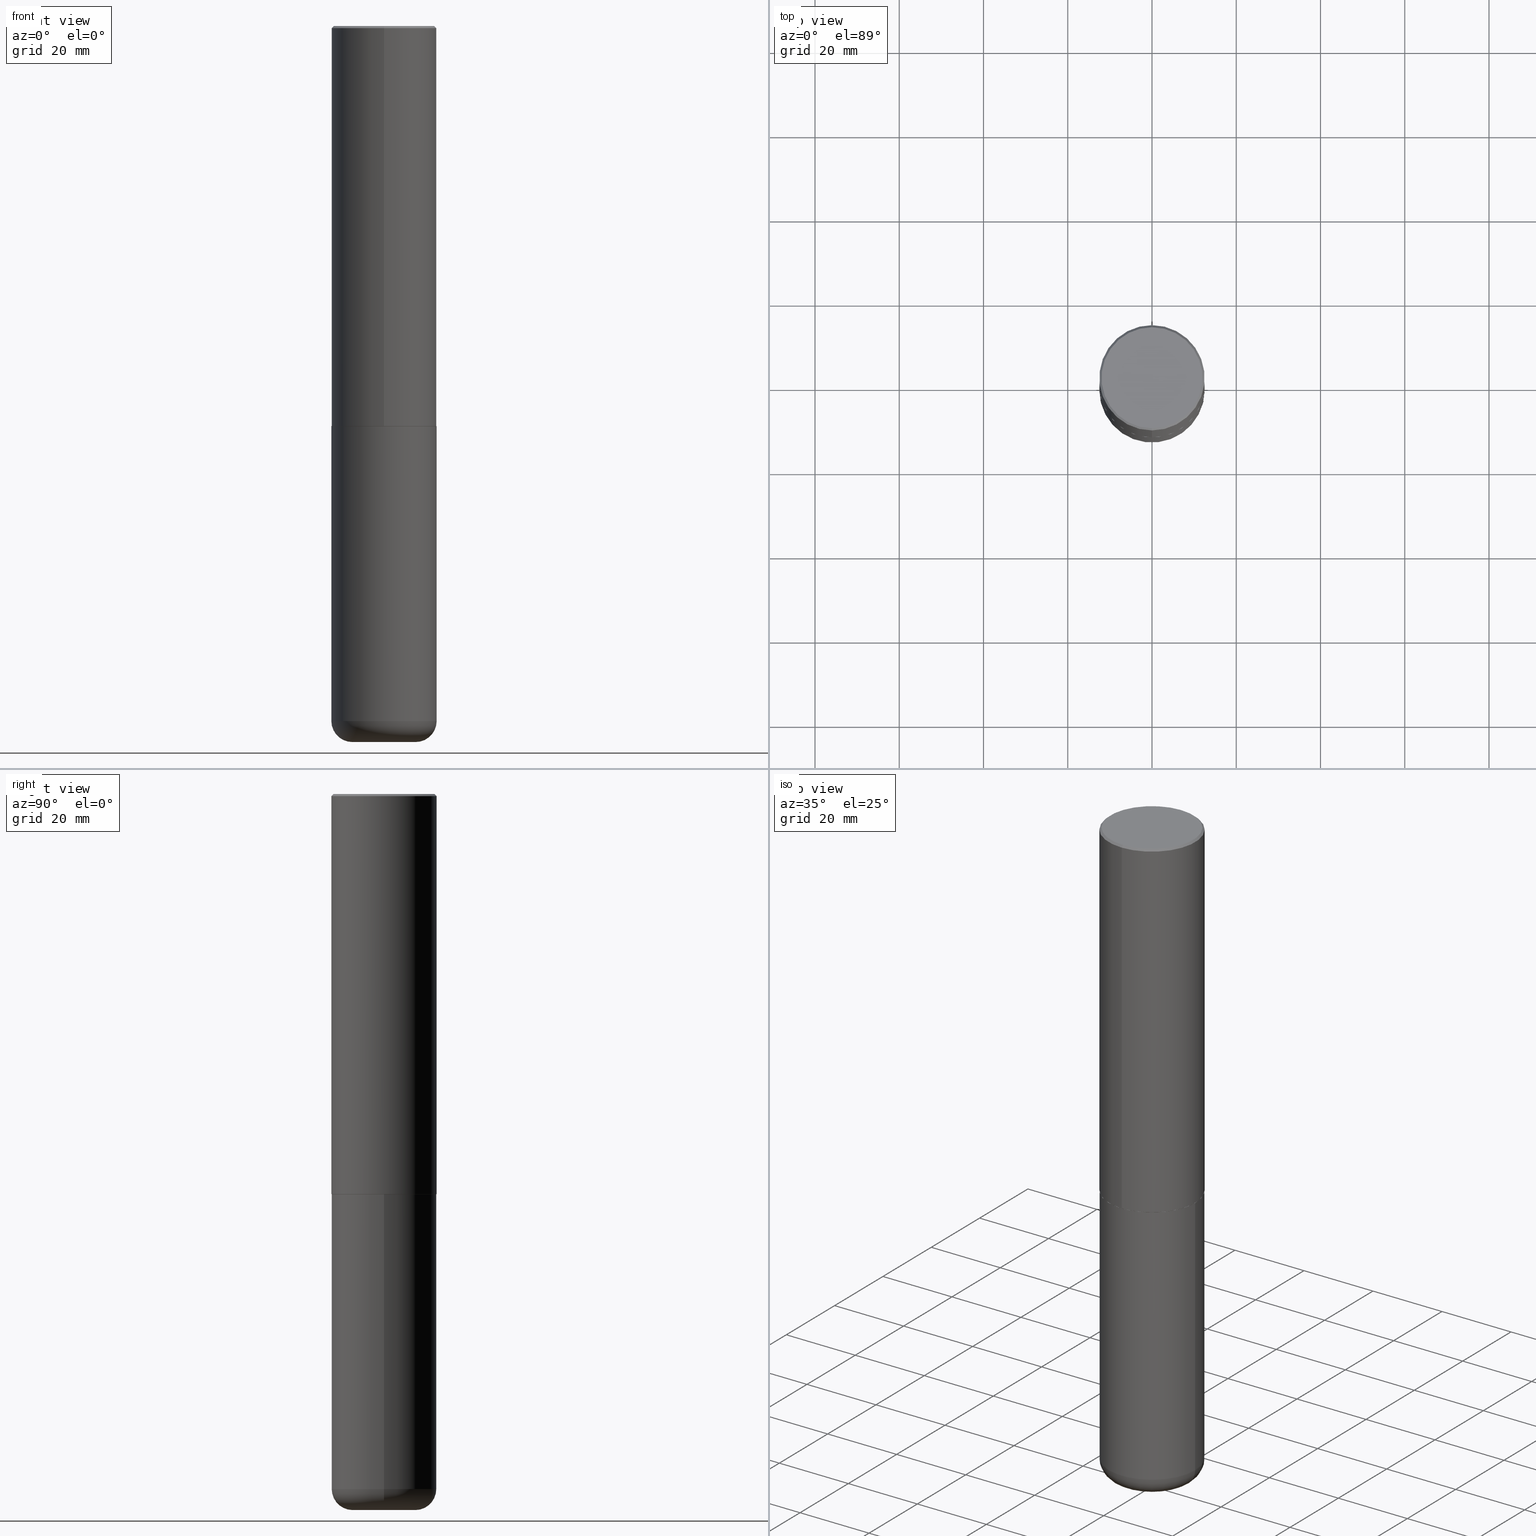
[diagram: canonical four-view strip — front | top / right | iso, engineering-drawing reading convention]
A machine part, canonical four-view strip (front | top / right | iso — engineering-drawing reading convention). The complete STEP part file that produces these views, byte-faithful:
ISO-10303-21;
HEADER;
FILE_DESCRIPTION (( 'STEP AP203' ),
    '1' );
FILE_NAME ('47633.STEP',
    '2024-03-06T19:43:57',
    ( '' ),
    ( '' ),
    'SwSTEP 2.0',
    'SolidWorks 2023',
    '' );
FILE_SCHEMA (( 'CONFIG_CONTROL_DESIGN' ));
ENDSEC;

DATA;
#1 = VECTOR ( 'NONE', #215, 39.37007874015748143 ) ;
#2 = ORIENTED_EDGE ( 'NONE', *, *, #374, .F. ) ;
#3 = DIRECTION ( 'NONE',  ( -6.982962677686265922E-15, -1.000000000000000000, 3.337287582609300506E-15 ) ) ;
#4 = EDGE_CURVE ( 'NONE', #402, #116, #306, .T. ) ;
#5 = DIRECTION ( 'NONE',  ( -2.445468806185136597E-29, 3.491481338843145583E-15, 1.000000000000000000 ) ) ;
#6 = DIRECTION ( 'NONE',  ( 2.445976594451651952E-29, -3.490754157143982552E-15, -1.000000000000000000 ) ) ;
#7 = DATE_TIME_ROLE ( 'creation_date' ) ;
#8 = AXIS2_PLACEMENT_3D ( 'NONE', #284, #12, #404 ) ;
#9 = COORDINATED_UNIVERSAL_TIME_OFFSET ( 5, 0, .BEHIND. ) ;
#10 = APPROVAL_PERSON_ORGANIZATION ( #71, #274, #392 ) ;
#11 = CYLINDRICAL_SURFACE ( 'NONE', #338, 0.4921500000000000874 ) ;
#12 = DIRECTION ( 'NONE',  ( -2.445468806185136597E-29, 3.491481338843145583E-15, 1.000000000000000000 ) ) ;
#13 = EDGE_CURVE ( 'NONE', #402, #251, #363, .T. ) ;
#14 = AXIS2_PLACEMENT_3D ( 'NONE', #195, #6, #241 ) ;
#15 = LINE ( 'NONE', #120, #253 ) ;
#16 = EDGE_LOOP ( 'NONE', ( #21, #373 ) ) ;
#17 =( NAMED_UNIT ( * ) SI_UNIT ( $, .STERADIAN. ) SOLID_ANGLE_UNIT ( ) );
#18 = DESIGN_CONTEXT ( 'detailed design', #263, 'design' ) ;
#19 = ORIENTED_EDGE ( 'NONE', *, *, #69, .F. ) ;
#20 = ORIENTED_EDGE ( 'NONE', *, *, #104, .T. ) ;
#21 = ORIENTED_EDGE ( 'NONE', *, *, #374, .T. ) ;
#22 = AXIS2_PLACEMENT_3D ( 'NONE', #302, #137, #390 ) ;
#23 = ORIENTED_EDGE ( 'NONE', *, *, #146, .F. ) ;
#24 = DIRECTION ( 'NONE',  ( -2.445468806185136597E-29, 3.491481338843145583E-15, 1.000000000000000000 ) ) ;
#25 = APPROVAL_STATUS ( 'not_yet_approved' ) ;
#26 = ADVANCED_FACE ( 'NONE', ( #55 ), #128, .T. ) ;
#27 = ORIENTED_EDGE ( 'NONE', *, *, #393, .F. ) ;
#28 = AXIS2_PLACEMENT_3D ( 'NONE', #51, #34, #194 ) ;
#29 = CC_DESIGN_APPROVAL ( #43, ( #129 ) ) ;
#30 = ORIENTED_EDGE ( 'NONE', *, *, #60, .F. ) ;
#31 = PERSON_AND_ORGANIZATION ( #271, #208 ) ;
#32 = DIRECTION ( 'NONE',  ( -1.000000000000000000, 6.982962677686265922E-15, -4.876176775795935793E-29 ) ) ;
#33 = COORDINATED_UNIVERSAL_TIME_OFFSET ( 5, 0, .BEHIND. ) ;
#34 = DIRECTION ( 'NONE',  ( -2.445976594451651952E-29, 3.490754157143982552E-15, 1.000000000000000000 ) ) ;
#35 = DIRECTION ( 'NONE',  ( -2.445976594451651952E-29, 3.490754157143982552E-15, 1.000000000000000000 ) ) ;
#36 = PLANE ( 'NONE',  #67 ) ;
#37 = CARTESIAN_POINT ( 'NONE',  ( -3.436665081823207030E-15, -0.4921500000000134101, -3.739099999999998758 ) ) ;
#38 = EDGE_CURVE ( 'NONE', #251, #149, #287, .T. ) ;
#39 = CARTESIAN_POINT ( 'NONE',  ( -5.420756467185317189E-45, 7.736185299407739239E-31, 2.216193106459615290E-16 ) ) ;
#40 = FACE_OUTER_BOUND ( 'NONE', #252, .T. ) ;
#41 = CARTESIAN_POINT ( 'NONE',  ( 1.588576536497864771E-28, -2.268066277712507367E-14, -6.495999999999999552 ) ) ;
#42 = EDGE_CURVE ( 'NONE', #251, #85, #264, .T. ) ;
#43 = APPROVAL ( #138, 'UNSPECIFIED' ) ;
#44 = LOCAL_TIME ( 14, 43, 57.00000000000000000, #33 ) ;
#45 = PERSON_AND_ORGANIZATION_ROLE ( 'design_owner' ) ;
#46 = CIRCLE ( 'NONE', #141, 0.4721499999999996255 ) ;
#47 = CIRCLE ( 'NONE', #364, 0.4911499999999999755 ) ;
#48 = VERTEX_POINT ( 'NONE', #37 ) ;
#49 = VERTEX_POINT ( 'NONE', #383 ) ;
#50 = CARTESIAN_POINT ( 'NONE',  ( 0.4921499999999999764, -1.649515443723054663E-14, -3.740100000000000424 ) ) ;
#51 = CARTESIAN_POINT ( 'NONE',  ( 0.000000000000000000, 0.000000000000000000, 0.000000000000000000 ) ) ;
#52 = ORIENTED_EDGE ( 'NONE', *, *, #69, .T. ) ;
#53 = CIRCLE ( 'NONE', #296, 0.4921499999999999764 ) ;
#54 = DIRECTION ( 'NONE',  ( 5.024295867790978808E-15, 0.7071067811869604647, 0.7071067811861345698 ) ) ;
#55 = FACE_OUTER_BOUND ( 'NONE', #227, .T. ) ;
#56 = CARTESIAN_POINT ( 'NONE',  ( 0.4921499999999997543, -2.611732785894836787E-14, -6.495999999999999552 ) ) ;
#57 = AXIS2_PLACEMENT_3D ( 'NONE', #246, #400, #109 ) ;
#58 = CARTESIAN_POINT ( 'NONE',  ( 4.891953188903329688E-31, -6.981508314288001687E-17, -0.02000000000000010797 ) ) ;
#59 =( GEOMETRIC_REPRESENTATION_CONTEXT ( 3 ) GLOBAL_UNCERTAINTY_ASSIGNED_CONTEXT ( ( #101 ) ) GLOBAL_UNIT_ASSIGNED_CONTEXT ( ( #366, #80, #17 ) ) REPRESENTATION_CONTEXT ( 'NONE', 'WORKASPACE' ) );
#60 = EDGE_CURVE ( 'NONE', #201, #332, #170, .T. ) ;
#61 = ORIENTED_EDGE ( 'NONE', *, *, #42, .F. ) ;
#62 = FACE_OUTER_BOUND ( 'NONE', #144, .T. ) ;
#63 = DATE_AND_TIME ( #231, #140 ) ;
#64 = DIRECTION ( 'NONE',  ( -1.000000000000000000, 6.982962677686265922E-15, -4.876176775795935793E-29 ) ) ;
#65 = CARTESIAN_POINT ( 'NONE',  ( 9.148197060908621523E-29, -1.305576962313420868E-14, -3.740099999999999980 ) ) ;
#66 = CLOSED_SHELL ( 'NONE', ( #316, #367, #317, #378, #114, #337 ) ) ;
#67 = AXIS2_PLACEMENT_3D ( 'NONE', #345, #299, #193 ) ;
#68 = COORDINATED_UNIVERSAL_TIME_OFFSET ( 5, 0, .BEHIND. ) ;
#69 = EDGE_CURVE ( 'NONE', #85, #49, #331, .T. ) ;
#70 = DIRECTION ( 'NONE',  ( -2.445976594451651952E-29, 3.490754157143982552E-15, 1.000000000000000000 ) ) ;
#71 = PERSON_AND_ORGANIZATION ( #271, #208 ) ;
#72 = EDGE_CURVE ( 'NONE', #149, #49, #15, .T. ) ;
#73 = PERSON_AND_ORGANIZATION ( #271, #208 ) ;
#74 = APPROVAL_STATUS ( 'not_yet_approved' ) ;
#75 = CARTESIAN_POINT ( 'NONE',  ( 0.000000000000000000, 0.000000000000000000, 0.000000000000000000 ) ) ;
#76 = DIRECTION ( 'NONE',  ( -4.851104656540955597E-15, -0.7071067811865487940, -0.7071067811865461294 ) ) ;
#77 = CARTESIAN_POINT ( 'NONE',  ( 3.496936074043333291E-15, 0.4921500000000000874, -1.717974658438411319E-15 ) ) ;
#78 = CONICAL_SURFACE ( 'NONE', #142, 0.4911499999999999755, 0.7853981633980288146 ) ;
#79 = ORIENTED_EDGE ( 'NONE', *, *, #393, .T. ) ;
#80 =( NAMED_UNIT ( * ) PLANE_ANGLE_UNIT ( ) SI_UNIT ( $, .RADIAN. ) );
#81 = ORIENTED_EDGE ( 'NONE', *, *, #104, .F. ) ;
#82 = AXIS2_PLACEMENT_3D ( 'NONE', #91, #276, #298 ) ;
#83 = AXIS2_PLACEMENT_3D ( 'NONE', #228, #96, #32 ) ;
#84 = DIRECTION ( 'NONE',  ( -2.445468806185136877E-29, 3.491481338843145188E-15, 1.000000000000000000 ) ) ;
#85 = VERTEX_POINT ( 'NONE', #50 ) ;
#86 = FACE_OUTER_BOUND ( 'NONE', #291, .T. ) ;
#87 = ORIENTED_EDGE ( 'NONE', *, *, #353, .T. ) ;
#88 = CC_DESIGN_PERSON_AND_ORGANIZATION_ASSIGNMENT ( #73, #304, ( #118 ) ) ;
#89 = VECTOR ( 'NONE', #90, 39.37007874015748143 ) ;
#90 = DIRECTION ( 'NONE',  ( -2.445468806185136877E-29, 3.491481338843145188E-15, 1.000000000000000000 ) ) ;
#91 = CARTESIAN_POINT ( 'NONE',  ( 4.891953188903329688E-31, -6.981508314288001687E-17, -0.02000000000000010797 ) ) ;
#92 = AXIS2_PLACEMENT_3D ( 'NONE', #39, #35, #174 ) ;
#93 = PERSON_AND_ORGANIZATION ( #271, #208 ) ;
#94 = ORIENTED_EDGE ( 'NONE', *, *, #164, .T. ) ;
#95 = CARTESIAN_POINT ( 'NONE',  ( -0.2952499999999999569, -2.058278534979337620E-14, -6.495999999999999552 ) ) ;
#96 = DIRECTION ( 'NONE',  ( 2.438088387897960049E-29, -3.491481338843145188E-15, -1.000000000000000000 ) ) ;
#97 = DATE_AND_TIME ( #388, #161 ) ;
#98 = LINE ( 'NONE', #77, #1 ) ;
#99 = EDGE_CURVE ( 'NONE', #217, #201, #46, .T. ) ;
#100 = CARTESIAN_POINT ( 'NONE',  ( 0.2952500000000000124, -2.542985518333015688E-14, -6.692899999999998961 ) ) ;
#101 = UNCERTAINTY_MEASURE_WITH_UNIT (LENGTH_MEASURE( 1.000000000000000082E-05 ), #366, 'distance_accuracy_value', 'NONE');
#102 = AXIS2_PLACEMENT_3D ( 'NONE', #130, #329, #64 ) ;
#103 = CARTESIAN_POINT ( 'NONE',  ( -0.4921499999999997543, -1.918372670308173998E-14, -6.495999999999999552 ) ) ;
#104 = EDGE_CURVE ( 'NONE', #321, #332, #313, .T. ) ;
#105 = DIRECTION ( 'NONE',  ( -6.982962677686265922E-15, -1.000000000000000000, 3.330506545156063496E-15 ) ) ;
#106 = CARTESIAN_POINT ( 'NONE',  ( -0.2952500000000000124, -2.022699236424666989E-14, -6.692899999999998961 ) ) ;
#107 = CC_DESIGN_PERSON_AND_ORGANIZATION_ASSIGNMENT ( #31, #416, ( #200 ) ) ;
#108 = AXIS2_PLACEMENT_3D ( 'NONE', #75, #245, #282 ) ;
#109 = DIRECTION ( 'NONE',  ( 1.000000000000000000, -6.982962677686264344E-15, 4.883557194083111780E-29 ) ) ;
#110 = APPLICATION_PROTOCOL_DEFINITION ( 'international standard', 'config_control_design', 1994, #263 ) ;
#111 = CARTESIAN_POINT ( 'NONE',  ( 4.891953188903329688E-31, -6.981508314288001687E-17, -0.02000000000000010797 ) ) ;
#112 = ORIENTED_EDGE ( 'NONE', *, *, #42, .T. ) ;
#113 = PERSON_AND_ORGANIZATION ( #271, #208 ) ;
#114 = ADVANCED_FACE ( 'NONE', ( #283 ), #412, .T. ) ;
#115 = ORIENTED_EDGE ( 'NONE', *, *, #183, .T. ) ;
#116 = VERTEX_POINT ( 'NONE', #106 ) ;
#117 = CIRCLE ( 'NONE', #176, 0.4921499999999999764 ) ;
#118 = SECURITY_CLASSIFICATION ( '', '', #327 ) ;
#119 = CC_DESIGN_APPROVAL ( #340, ( #118 ) ) ;
#120 = CARTESIAN_POINT ( 'NONE',  ( -0.4921499999999999764, 3.496936074043332897E-15, -2.420853904668951509E-29 ) ) ;
#121 = ORIENTED_EDGE ( 'NONE', *, *, #13, .T. ) ;
#122 = DATE_TIME_ROLE ( 'classification_date' ) ;
#123 = EDGE_LOOP ( 'NONE', ( #259, #372, #121, #27 ) ) ;
#124 = ORIENTED_EDGE ( 'NONE', *, *, #300, .F. ) ;
#125 = VERTEX_POINT ( 'NONE', #249 ) ;
#126 = TOROIDAL_SURFACE ( 'NONE', #214, 0.2952499999999999569, 0.1968999999999996031 ) ;
#127 = CARTESIAN_POINT ( 'NONE',  ( 0.000000000000000000, 0.000000000000000000, 0.000000000000000000 ) ) ;
#128 = CYLINDRICAL_SURFACE ( 'NONE', #28, 0.4921500000000000874 ) ;
#129 = PRODUCT_DEFINITION ( 'UNKNOWN', '', #200, #18 ) ;
#130 = CARTESIAN_POINT ( 'NONE',  ( 3.366467196184149442E-28, 1.402716959511487627E-15, -6.692899999999999849 ) ) ;
#131 = LINE ( 'NONE', #266, #240 ) ;
#132 = EDGE_LOOP ( 'NONE', ( #295, #344, #342, #268 ) ) ;
#133 = AXIS2_PLACEMENT_3D ( 'NONE', #347, #376, #202 ) ;
#134 = DIRECTION ( 'NONE',  ( 6.982962677686265922E-15, 1.000000000000000000, -3.490754157143982552E-15 ) ) ;
#135 = COORDINATED_UNIVERSAL_TIME_OFFSET ( 5, 0, .BEHIND. ) ;
#136 = VERTEX_POINT ( 'NONE', #187 ) ;
#137 = DIRECTION ( 'NONE',  ( -2.445976594451651952E-29, 3.490754157143982552E-15, 1.000000000000000000 ) ) ;
#138 = APPROVAL_STATUS ( 'not_yet_approved' ) ;
#139 = FACE_OUTER_BOUND ( 'NONE', #132, .T. ) ;
#140 = LOCAL_TIME ( 14, 43, 57.00000000000000000, #334 ) ;
#141 = AXIS2_PLACEMENT_3D ( 'NONE', #398, #311, #143 ) ;
#142 = AXIS2_PLACEMENT_3D ( 'NONE', #325, #70, #211 ) ;
#143 = DIRECTION ( 'NONE',  ( -6.982962677686265922E-15, -1.000000000000000000, 3.490754157143982946E-15 ) ) ;
#144 = EDGE_LOOP ( 'NONE', ( #153, #312 ) ) ;
#145 = ORIENTED_EDGE ( 'NONE', *, *, #353, .F. ) ;
#146 = EDGE_CURVE ( 'NONE', #49, #85, #117, .T. ) ;
#147 = EDGE_LOOP ( 'NONE', ( #52, #297 ) ) ;
#148 = CARTESIAN_POINT ( 'NONE',  ( 3.489830646685823002E-15, 0.4911499999999869304, -3.740100000000001312 ) ) ;
#149 = VERTEX_POINT ( 'NONE', #103 ) ;
#150 = ORIENTED_EDGE ( 'NONE', *, *, #280, .T. ) ;
#151 = CYLINDRICAL_SURFACE ( 'NONE', #385, 0.4921499999999999764 ) ;
#152 = CIRCLE ( 'NONE', #82, 0.4921499999999999209 ) ;
#153 = ORIENTED_EDGE ( 'NONE', *, *, #4, .F. ) ;
#154 = SHAPE_DEFINITION_REPRESENTATION ( #223, #250 ) ;
#155 = DIRECTION ( 'NONE',  ( 1.000000000000000000, -6.982962677686265922E-15, 0.000000000000000000 ) ) ;
#156 = APPROVAL_ROLE ( '' ) ;
#157 = DIRECTION ( 'NONE',  ( 1.000000000000000000, -6.982962677686273021E-15, 0.000000000000000000 ) ) ;
#158 = ORIENTED_EDGE ( 'NONE', *, *, #197, .T. ) ;
#159 = CARTESIAN_POINT ( 'NONE',  ( -3.307789109625541747E-15, -0.4721499999999996255, 1.869778885941491673E-15 ) ) ;
#160 = CARTESIAN_POINT ( 'NONE',  ( 1.588576536497864771E-28, -2.268066277712507367E-14, -6.495999999999999552 ) ) ;
#161 = LOCAL_TIME ( 14, 43, 57.00000000000000000, #135 ) ;
#162 = EDGE_CURVE ( 'NONE', #217, #321, #180, .T. ) ;
#163 = ORIENTED_EDGE ( 'NONE', *, *, #162, .T. ) ;
#164 = EDGE_CURVE ( 'NONE', #125, #48, #254, .T. ) ;
#165 = PLANE ( 'NONE',  #102 ) ;
#166 = CARTESIAN_POINT ( 'NONE',  ( 3.366835455046432084E-15, 0.4721499999999996255, -1.426540264649568516E-15 ) ) ;
#167 = DIRECTION ( 'NONE',  ( 1.000000000000000000, -6.982962677686265922E-15, 0.000000000000000000 ) ) ;
#168 = CARTESIAN_POINT ( 'NONE',  ( 3.297005828269567997E-15, 0.4721499999999996255, -1.537349919972549256E-15 ) ) ;
#169 = FACE_OUTER_BOUND ( 'NONE', #289, .T. ) ;
#170 = LINE ( 'NONE', #415, #198 ) ;
#171 = DIRECTION ( 'NONE',  ( 1.000000000000000000, -6.982962677686265922E-15, 0.000000000000000000 ) ) ;
#172 = DIRECTION ( 'NONE',  ( -6.982962677686265922E-15, -1.000000000000000000, 3.337287582609300506E-15 ) ) ;
#173 = VECTOR ( 'NONE', #54, 39.37007874015748143 ) ;
#174 = DIRECTION ( 'NONE',  ( -6.982962677686265922E-15, -1.000000000000000000, 3.490754157143982946E-15 ) ) ;
#175 = CYLINDRICAL_SURFACE ( 'NONE', #370, 0.4921499999999999764 ) ;
#176 = AXIS2_PLACEMENT_3D ( 'NONE', #315, #356, #167 ) ;
#177 = CIRCLE ( 'NONE', #22, 0.4921500000000003650 ) ;
#178 = CC_DESIGN_SECURITY_CLASSIFICATION ( #118, ( #200 ) ) ;
#179 = DATE_AND_TIME ( #244, #186 ) ;
#180 = LINE ( 'NONE', #360, #219 ) ;
#181 = VERTEX_POINT ( 'NONE', #210 ) ;
#182 = DIRECTION ( 'NONE',  ( -2.445976594451651952E-29, 3.490754157143982552E-15, 1.000000000000000000 ) ) ;
#183 = EDGE_CURVE ( 'NONE', #125, #332, #98, .T. ) ;
#184 = AXIS2_PLACEMENT_3D ( 'NONE', #111, #310, #365 ) ;
#185 = AXIS2_PLACEMENT_3D ( 'NONE', #168, #335, #134 ) ;
#186 = LOCAL_TIME ( 14, 43, 57.00000000000000000, #9 ) ;
#187 = CARTESIAN_POINT ( 'NONE',  ( 3.493383360364624690E-15, 0.4911499999999869304, -3.740100000000001312 ) ) ;
#188 =( LENGTH_UNIT ( ) NAMED_UNIT ( * ) SI_UNIT ( $, .METRE. ) );
#189 = ORIENTED_EDGE ( 'NONE', *, *, #60, .T. ) ;
#190 = ORIENTED_EDGE ( 'NONE', *, *, #38, .F. ) ;
#191 = CARTESIAN_POINT ( 'NONE',  ( 0.2952499999999999569, -2.474238250771194590E-14, -6.495999999999999552 ) ) ;
#192 = CC_DESIGN_PERSON_AND_ORGANIZATION_ASSIGNMENT ( #93, #324, ( #200 ) ) ;
#193 = DIRECTION ( 'NONE',  ( -6.982962677686265922E-15, -1.000000000000000000, 3.490754157143982552E-15 ) ) ;
#194 = DIRECTION ( 'NONE',  ( -6.982962677686265922E-15, -1.000000000000000000, 3.490754157143982552E-15 ) ) ;
#195 = CARTESIAN_POINT ( 'NONE',  ( 4.891953188903329688E-31, -6.981508314288001687E-17, -0.02000000000000010797 ) ) ;
#196 = ADVANCED_FACE ( 'NONE', ( #339 ), #11, .T. ) ;
#197 = EDGE_CURVE ( 'NONE', #136, #181, #355, .T. ) ;
#198 = VECTOR ( 'NONE', #242, 39.37007874015748143 ) ;
#199 = DIRECTION ( 'NONE',  ( 1.000000000000000000, -6.982962677686270655E-15, 0.000000000000000000 ) ) ;
#200 = PRODUCT_DEFINITION_FORMATION_WITH_SPECIFIED_SOURCE ( 'ANY', '', #394, .NOT_KNOWN. ) ;
#201 = VERTEX_POINT ( 'NONE', #166 ) ;
#202 = DIRECTION ( 'NONE',  ( 1.000000000000000000, -6.982962677686273021E-15, 0.000000000000000000 ) ) ;
#203 = DIRECTION ( 'NONE',  ( 1.000000000000000000, -6.982962677686264344E-15, 4.883557194083111780E-29 ) ) ;
#204 = CARTESIAN_POINT ( 'NONE',  ( 1.588576536497864771E-28, -2.268066277712507367E-14, -6.495999999999999552 ) ) ;
#205 = DIRECTION ( 'NONE',  ( -2.445976594451651952E-29, 3.490754157143982552E-15, 1.000000000000000000 ) ) ;
#206 = AXIS2_PLACEMENT_3D ( 'NONE', #160, #24, #155 ) ;
#207 = DIRECTION ( 'NONE',  ( -2.445976594451651952E-29, 3.490754157143982552E-15, 1.000000000000000000 ) ) ;
#208 = ORGANIZATION ( 'UNSPECIFIED', 'UNSPECIFIED', '' ) ;
#209 = PERSON_AND_ORGANIZATION_ROLE ( 'creator' ) ;
#210 = CARTESIAN_POINT ( 'NONE',  ( -3.429682119145517860E-15, -0.4911500000000130206, -3.740099999999998204 ) ) ;
#211 = DIRECTION ( 'NONE',  ( -6.982962677686265922E-15, -1.000000000000000000, 3.337287582609300506E-15 ) ) ;
#212 = ADVANCED_FACE ( 'NONE', ( #169 ), #36, .F. ) ;
#213 = CARTESIAN_POINT ( 'NONE',  ( 9.145751084314172604E-29, -1.305227886897706845E-14, -3.739100000000000534 ) ) ;
#214 = AXIS2_PLACEMENT_3D ( 'NONE', #204, #330, #203 ) ;
#215 = DIRECTION ( 'NONE',  ( -2.445976594451651672E-29, 3.490754157143982552E-15, 1.000000000000000000 ) ) ;
#216 = CC_DESIGN_PERSON_AND_ORGANIZATION_ASSIGNMENT ( #236, #209, ( #129 ) ) ;
#217 = VERTEX_POINT ( 'NONE', #159 ) ;
#218 = ORIENTED_EDGE ( 'NONE', *, *, #399, .T. ) ;
#219 = VECTOR ( 'NONE', #76, 39.37007874015748854 ) ;
#220 = EDGE_LOOP ( 'NONE', ( #124, #158, #150, #221 ) ) ;
#221 = ORIENTED_EDGE ( 'NONE', *, *, #164, .F. ) ;
#222 = EDGE_CURVE ( 'NONE', #116, #402, #406, .T. ) ;
#223 = PRODUCT_DEFINITION_SHAPE ( 'NONE', 'NONE',  #129 ) ;
#224 = AXIS2_PLACEMENT_3D ( 'NONE', #213, #277, #105 ) ;
#225 = DIRECTION ( 'NONE',  ( -6.982962677686266711E-15, -1.000000000000000000, 3.491481338843145583E-15 ) ) ;
#226 = EDGE_CURVE ( 'NONE', #48, #321, #131, .T. ) ;
#227 = EDGE_LOOP ( 'NONE', ( #255, #94, #408, #145 ) ) ;
#228 = CARTESIAN_POINT ( 'NONE',  ( 9.146297882013029477E-29, -1.305848935540725085E-14, -3.740100000000000424 ) ) ;
#229 = DIRECTION ( 'NONE',  ( -2.445468806185136597E-29, 3.491481338843145583E-15, 1.000000000000000000 ) ) ;
#230 = FACE_OUTER_BOUND ( 'NONE', #405, .T. ) ;
#231 = CALENDAR_DATE ( 2024, 6, 3 ) ;
#232 = PLANE ( 'NONE',  #83 ) ;
#233 = CC_DESIGN_PERSON_AND_ORGANIZATION_ASSIGNMENT ( #305, #45, ( #394 ) ) ;
#234 = EDGE_LOOP ( 'NONE', ( #318, #2, #189, #87 ) ) ;
#235 = DIRECTION ( 'NONE',  ( -1.000000000000000000, 7.105427357601008170E-15, 0.000000000000000000 ) ) ;
#236 = PERSON_AND_ORGANIZATION ( #271, #208 ) ;
#237 = DIRECTION ( 'NONE',  ( -6.982962677686265922E-15, -1.000000000000000000, 3.490754157143982552E-15 ) ) ;
#238 = APPLICATION_CONTEXT ( 'configuration controlled 3d designs of mechanical parts and assemblies' ) ;
#239 = CARTESIAN_POINT ( 'NONE',  ( 0.000000000000000000, 0.000000000000000000, 0.000000000000000000 ) ) ;
#240 = VECTOR ( 'NONE', #346, 39.37007874015748143 ) ;
#241 = DIRECTION ( 'NONE',  ( 6.982962677686265922E-15, 1.000000000000000000, -3.486624039460257331E-15 ) ) ;
#242 = DIRECTION ( 'NONE',  ( 4.937700262164540154E-15, 0.7071067811865440200, -0.7071067811865511255 ) ) ;
#243 = PRODUCT_RELATED_PRODUCT_CATEGORY ( 'detail', '', ( #394 ) ) ;
#244 = CALENDAR_DATE ( 2024, 6, 3 ) ;
#245 = DIRECTION ( 'NONE',  ( 0.000000000000000000, 0.000000000000000000, 1.000000000000000000 ) ) ;
#246 = CARTESIAN_POINT ( 'NONE',  ( 1.588576536497864771E-28, -2.268066277712507367E-14, -6.495999999999999552 ) ) ;
#247 = AXIS2_PLACEMENT_3D ( 'NONE', #191, #225, #199 ) ;
#248 = VECTOR ( 'NONE', #273, 39.37007874015748143 ) ;
#249 = CARTESIAN_POINT ( 'NONE',  ( 3.496936074043380229E-15, 0.4921499999999873198, -3.739100000000002311 ) ) ;
#250 = ADVANCED_BREP_SHAPE_REPRESENTATION ( '47633', ( #270, #395, #108 ), #59 ) ;
#251 = VERTEX_POINT ( 'NONE', #56 ) ;
#252 = EDGE_LOOP ( 'NONE', ( #328, #257, #190, #409 ) ) ;
#253 = VECTOR ( 'NONE', #84, 39.37007874015748143 ) ;
#254 = CIRCLE ( 'NONE', #224, 0.4921500000000003650 ) ;
#255 = ORIENTED_EDGE ( 'NONE', *, *, #183, .F. ) ;
#256 = ADVANCED_FACE ( 'NONE', ( #230 ), #292, .T. ) ;
#257 = ORIENTED_EDGE ( 'NONE', *, *, #361, .T. ) ;
#258 = PERSON_AND_ORGANIZATION ( #271, #208 ) ;
#259 = ORIENTED_EDGE ( 'NONE', *, *, #361, .F. ) ;
#260 = LINE ( 'NONE', #148, #173 ) ;
#261 = DIRECTION ( 'NONE',  ( -6.982962677686265922E-15, -1.000000000000000000, 3.337287582609300506E-15 ) ) ;
#262 = AXIS2_PLACEMENT_3D ( 'NONE', #351, #207, #3 ) ;
#263 = APPLICATION_CONTEXT ( 'configuration controlled 3d designs of mechanical parts and assemblies' ) ;
#264 = LINE ( 'NONE', #377, #89 ) ;
#265 = FACE_OUTER_BOUND ( 'NONE', #16, .T. ) ;
#266 = CARTESIAN_POINT ( 'NONE',  ( -3.436665081823296565E-15, -0.4921500000000000874, 1.717974658438411319E-15 ) ) ;
#267 = DATE_AND_TIME ( #417, #44 ) ;
#268 = ORIENTED_EDGE ( 'NONE', *, *, #280, .F. ) ;
#269 = AXIS2_PLACEMENT_3D ( 'NONE', #354, #182, #261 ) ;
#270 = MANIFOLD_SOLID_BREP ( 'Body-Move/Copy2[1]', #66 ) ;
#271 = PERSON ( 'UNSPECIFIED', 'UNSPECIFIED', 'UNSPECIFIED', ('UNSPECIFIED'), ('UNSPECIFIED'), ('UNSPECIFIED') ) ;
#272 = DIRECTION ( 'NONE',  ( 1.000000000000000000, -6.982962677686265922E-15, 4.876176775795935793E-29 ) ) ;
#273 = DIRECTION ( 'NONE',  ( -4.937700262167413974E-15, -0.7071067811869555797, 0.7071067811861394548 ) ) ;
#274 = APPROVAL ( #74, 'UNSPECIFIED' ) ;
#275 = EDGE_LOOP ( 'NONE', ( #410, #79, #112, #23 ) ) ;
#276 = DIRECTION ( 'NONE',  ( -2.445976594451651952E-29, 3.490754157143982552E-15, 1.000000000000000000 ) ) ;
#277 = DIRECTION ( 'NONE',  ( -2.445976594451651952E-29, 3.490754157143982552E-15, 1.000000000000000000 ) ) ;
#278 = DIRECTION ( 'NONE',  ( -2.445468806185136597E-29, 3.491481338843145583E-15, 1.000000000000000000 ) ) ;
#279 = APPROVAL_DATE_TIME ( #359, #340 ) ;
#280 = EDGE_CURVE ( 'NONE', #181, #48, #358, .T. ) ;
#281 = CONICAL_SURFACE ( 'NONE', #262, 0.4911499999999999755, 0.7853981633980288146 ) ;
#282 = DIRECTION ( 'NONE',  ( 1.000000000000000000, 0.000000000000000000, 0.000000000000000000 ) ) ;
#283 = FACE_OUTER_BOUND ( 'NONE', #123, .T. ) ;
#284 = CARTESIAN_POINT ( 'NONE',  ( 9.146297882013029477E-29, -1.305848935540725085E-14, -3.740100000000000424 ) ) ;
#285 = LENGTH_MEASURE_WITH_UNIT ( LENGTH_MEASURE( 0.02539999999999999897 ), #188 );
#286 = CARTESIAN_POINT ( 'NONE',  ( 0.000000000000000000, 0.000000000000000000, 0.000000000000000000 ) ) ;
#287 = CIRCLE ( 'NONE', #206, 0.4921499999999999764 ) ;
#288 = DIRECTION ( 'NONE',  ( 2.445976594451651952E-29, -3.490754157143982552E-15, -1.000000000000000000 ) ) ;
#289 = EDGE_LOOP ( 'NONE', ( #401, #350 ) ) ;
#290 = ORIENTED_EDGE ( 'NONE', *, *, #72, .T. ) ;
#291 = EDGE_LOOP ( 'NONE', ( #343, #290, #19, #61 ) ) ;
#292 = CONICAL_SURFACE ( 'NONE', #14, 0.4921499999999999209, 0.7853981633974467247 ) ;
#293 = ORIENTED_EDGE ( 'NONE', *, *, #226, .F. ) ;
#294 = EDGE_CURVE ( 'NONE', #181, #136, #47, .T. ) ;
#295 = ORIENTED_EDGE ( 'NONE', *, *, #294, .T. ) ;
#296 = AXIS2_PLACEMENT_3D ( 'NONE', #41, #278, #171 ) ;
#297 = ORIENTED_EDGE ( 'NONE', *, *, #146, .T. ) ;
#298 = DIRECTION ( 'NONE',  ( -6.982962677686265922E-15, -1.000000000000000000, 3.486624039460257331E-15 ) ) ;
#299 = DIRECTION ( 'NONE',  ( -2.445976594451651392E-29, 3.490754157143982552E-15, 1.000000000000000000 ) ) ;
#300 = EDGE_CURVE ( 'NONE', #136, #125, #260, .T. ) ;
#301 = AXIS2_PLACEMENT_3D ( 'NONE', #58, #288, #371 ) ;
#302 = CARTESIAN_POINT ( 'NONE',  ( 9.145751084314172604E-29, -1.305227886897706845E-14, -3.739100000000000534 ) ) ;
#303 = FACE_OUTER_BOUND ( 'NONE', #275, .T. ) ;
#304 = PERSON_AND_ORGANIZATION_ROLE ( 'classification_officer' ) ;
#305 = PERSON_AND_ORGANIZATION ( #271, #208 ) ;
#306 = CIRCLE ( 'NONE', #133, 0.2952500000000000124 ) ;
#307 = CC_DESIGN_APPROVAL ( #274, ( #200 ) ) ;
#308 = CARTESIAN_POINT ( 'NONE',  ( -3.429682119145517860E-15, -0.4911500000000130206, -3.740099999999998204 ) ) ;
#309 = APPROVAL_PERSON_ORGANIZATION ( #258, #340, #156 ) ;
#310 = DIRECTION ( 'NONE',  ( -2.445976594451651952E-29, 3.490754157143982552E-15, 1.000000000000000000 ) ) ;
#311 = DIRECTION ( 'NONE',  ( -2.445976594451651952E-29, 3.490754157143982552E-15, 1.000000000000000000 ) ) ;
#312 = ORIENTED_EDGE ( 'NONE', *, *, #222, .F. ) ;
#313 = CIRCLE ( 'NONE', #184, 0.4921499999999999209 ) ;
#314 = APPROVAL_PERSON_ORGANIZATION ( #113, #43, #418 ) ;
#315 = CARTESIAN_POINT ( 'NONE',  ( 9.146297882013029477E-29, -1.305848935540725085E-14, -3.740100000000000424 ) ) ;
#316 = ADVANCED_FACE ( 'NONE', ( #86 ), #151, .T. ) ;
#317 = ADVANCED_FACE ( 'NONE', ( #379 ), #232, .F. ) ;
#318 = ORIENTED_EDGE ( 'NONE', *, *, #162, .F. ) ;
#319 = CLOSED_SHELL ( 'NONE', ( #326, #196, #256, #413, #26, #403, #212, #407 ) ) ;
#320 = CONICAL_SURFACE ( 'NONE', #301, 0.4921499999999999209, 0.7853981633974467247 ) ;
#321 = VERTEX_POINT ( 'NONE', #387 ) ;
#322 = CIRCLE ( 'NONE', #391, 0.1968999999999995754 ) ;
#323 = AXIS2_PLACEMENT_3D ( 'NONE', #375, #411, #157 ) ;
#324 = PERSON_AND_ORGANIZATION_ROLE ( 'creator' ) ;
#325 = CARTESIAN_POINT ( 'NONE',  ( 9.148197060908621523E-29, -1.305576962313420868E-14, -3.740099999999999980 ) ) ;
#326 = ADVANCED_FACE ( 'NONE', ( #139 ), #281, .T. ) ;
#327 = SECURITY_CLASSIFICATION_LEVEL ( 'unclassified' ) ;
#328 = ORIENTED_EDGE ( 'NONE', *, *, #4, .T. ) ;
#329 = DIRECTION ( 'NONE',  ( 2.438088387897960049E-29, -3.491481338843145188E-15, -1.000000000000000000 ) ) ;
#330 = DIRECTION ( 'NONE',  ( -2.445468806185136597E-29, 3.491481338843145583E-15, 1.000000000000000000 ) ) ;
#331 = CIRCLE ( 'NONE', #8, 0.4921499999999999764 ) ;
#332 = VERTEX_POINT ( 'NONE', #382 ) ;
#333 = DIRECTION ( 'NONE',  ( 7.105427357601001859E-15, 1.000000000000000000, -3.491481338843145583E-15 ) ) ;
#334 = COORDINATED_UNIVERSAL_TIME_OFFSET ( 5, 0, .BEHIND. ) ;
#335 = DIRECTION ( 'NONE',  ( 2.445976594451651392E-29, -3.490754157143982552E-15, -1.000000000000000000 ) ) ;
#336 = APPROVAL_DATE_TIME ( #97, #43 ) ;
#337 = ADVANCED_FACE ( 'NONE', ( #62 ), #165, .T. ) ;
#338 = AXIS2_PLACEMENT_3D ( 'NONE', #286, #389, #237 ) ;
#339 = FACE_OUTER_BOUND ( 'NONE', #381, .T. ) ;
#340 = APPROVAL ( #25, 'UNSPECIFIED' ) ;
#341 = CC_DESIGN_DATE_AND_TIME_ASSIGNMENT ( #179, #122, ( #118 ) ) ;
#342 = ORIENTED_EDGE ( 'NONE', *, *, #399, .F. ) ;
#343 = ORIENTED_EDGE ( 'NONE', *, *, #38, .T. ) ;
#344 = ORIENTED_EDGE ( 'NONE', *, *, #300, .T. ) ;
#345 = CARTESIAN_POINT ( 'NONE',  ( 9.148197060908621523E-29, -1.305576962313420868E-14, -3.740099999999999980 ) ) ;
#346 = DIRECTION ( 'NONE',  ( -2.445976594451651672E-29, 3.490754157143982552E-15, 1.000000000000000000 ) ) ;
#347 = CARTESIAN_POINT ( 'NONE',  ( 1.636727817291649742E-28, -2.336813545274328465E-14, -6.692899999999998961 ) ) ;
#348 = PLANE ( 'NONE',  #185 ) ;
#349 = LOCAL_TIME ( 14, 43, 57.00000000000000000, #68 ) ;
#350 = ORIENTED_EDGE ( 'NONE', *, *, #197, .F. ) ;
#351 = CARTESIAN_POINT ( 'NONE',  ( 9.148197060908621523E-29, -1.305576962313420868E-14, -3.740099999999999980 ) ) ;
#352 = DIRECTION ( 'NONE',  ( 1.000000000000000000, -6.982962677686265922E-15, 4.876176775795935793E-29 ) ) ;
#353 = EDGE_CURVE ( 'NONE', #332, #321, #152, .T. ) ;
#354 = CARTESIAN_POINT ( 'NONE',  ( 9.148197060908621523E-29, -1.305576962313420868E-14, -3.740099999999999980 ) ) ;
#355 = CIRCLE ( 'NONE', #269, 0.4911499999999999755 ) ;
#356 = DIRECTION ( 'NONE',  ( -2.445468806185136597E-29, 3.491481338843145583E-15, 1.000000000000000000 ) ) ;
#357 = FACE_OUTER_BOUND ( 'NONE', #220, .T. ) ;
#358 = LINE ( 'NONE', #308, #248 ) ;
#359 = DATE_AND_TIME ( #380, #349 ) ;
#360 = CARTESIAN_POINT ( 'NONE',  ( -3.376394089603257868E-15, -0.4921499999999999764, -0.01999999999999839059 ) ) ;
#361 = EDGE_CURVE ( 'NONE', #116, #149, #322, .T. ) ;
#362 = APPLICATION_PROTOCOL_DEFINITION ( 'international standard', 'config_control_design', 1994, #238 ) ;
#363 = CIRCLE ( 'NONE', #247, 0.1968999999999995754 ) ;
#364 = AXIS2_PLACEMENT_3D ( 'NONE', #65, #205, #172 ) ;
#365 = DIRECTION ( 'NONE',  ( -6.982962677686265922E-15, -1.000000000000000000, 3.486624039460257331E-15 ) ) ;
#366 =( CONVERSION_BASED_UNIT ( 'INCH', #285 ) LENGTH_UNIT ( ) NAMED_UNIT ( #386 ) );
#367 = ADVANCED_FACE ( 'NONE', ( #40 ), #126, .T. ) ;
#368 = CC_DESIGN_DATE_AND_TIME_ASSIGNMENT ( #63, #7, ( #129 ) ) ;
#369 = ORIENTED_EDGE ( 'NONE', *, *, #99, .F. ) ;
#370 = AXIS2_PLACEMENT_3D ( 'NONE', #239, #5, #272 ) ;
#371 = DIRECTION ( 'NONE',  ( 6.982962677686265922E-15, 1.000000000000000000, -3.486624039460257331E-15 ) ) ;
#372 = ORIENTED_EDGE ( 'NONE', *, *, #222, .T. ) ;
#373 = ORIENTED_EDGE ( 'NONE', *, *, #99, .T. ) ;
#374 = EDGE_CURVE ( 'NONE', #201, #217, #397, .T. ) ;
#375 = CARTESIAN_POINT ( 'NONE',  ( 1.636727817291649742E-28, -2.336813545274328465E-14, -6.692899999999998961 ) ) ;
#376 = DIRECTION ( 'NONE',  ( -2.445468806185136597E-29, 3.491481338843145583E-15, 1.000000000000000000 ) ) ;
#377 = CARTESIAN_POINT ( 'NONE',  ( 0.4921499999999999764, -3.436665081823295777E-15, 2.399810400207969603E-29 ) ) ;
#378 = ADVANCED_FACE ( 'NONE', ( #303 ), #175, .T. ) ;
#379 = FACE_OUTER_BOUND ( 'NONE', #147, .T. ) ;
#380 = CALENDAR_DATE ( 2024, 6, 3 ) ;
#381 = EDGE_LOOP ( 'NONE', ( #218, #115, #81, #293 ) ) ;
#382 = CARTESIAN_POINT ( 'NONE',  ( 3.436665081823295777E-15, 0.4921499999999998098, -0.02000000000000182188 ) ) ;
#383 = CARTESIAN_POINT ( 'NONE',  ( -0.4921499999999999764, -1.437263999222282936E-14, -3.740100000000000424 ) ) ;
#384 = APPROVAL_DATE_TIME ( #267, #274 ) ;
#385 = AXIS2_PLACEMENT_3D ( 'NONE', #127, #229, #352 ) ;
#386 = DIMENSIONAL_EXPONENTS ( 1.000000000000000000, 0.000000000000000000, 0.000000000000000000, 0.000000000000000000, 0.000000000000000000, 0.000000000000000000, 0.000000000000000000 ) ;
#387 = CARTESIAN_POINT ( 'NONE',  ( -3.376394089603257868E-15, -0.4921499999999999764, -0.01999999999999839059 ) ) ;
#388 = CALENDAR_DATE ( 2024, 6, 3 ) ;
#389 = DIRECTION ( 'NONE',  ( -2.445976594451651952E-29, 3.490754157143982552E-15, 1.000000000000000000 ) ) ;
#390 = DIRECTION ( 'NONE',  ( -6.982962677686265922E-15, -1.000000000000000000, 3.330506545156063496E-15 ) ) ;
#391 = AXIS2_PLACEMENT_3D ( 'NONE', #95, #333, #235 ) ;
#392 = APPROVAL_ROLE ( '' ) ;
#393 = EDGE_CURVE ( 'NONE', #149, #251, #53, .T. ) ;
#394 = PRODUCT ( '47633', '47633', '', ( #396 ) ) ;
#395 = MANIFOLD_SOLID_BREP ( 'Body-Move/Copy2[2]', #319 ) ;
#396 = MECHANICAL_CONTEXT ( 'NONE', #238, 'mechanical' ) ;
#397 = CIRCLE ( 'NONE', #92, 0.4721499999999996255 ) ;
#398 = CARTESIAN_POINT ( 'NONE',  ( -5.420756467185317189E-45, 7.736185299407739239E-31, 2.216193106459615290E-16 ) ) ;
#399 = EDGE_CURVE ( 'NONE', #48, #125, #177, .T. ) ;
#400 = DIRECTION ( 'NONE',  ( -2.445468806185136597E-29, 3.491481338843145583E-15, 1.000000000000000000 ) ) ;
#401 = ORIENTED_EDGE ( 'NONE', *, *, #294, .F. ) ;
#402 = VERTEX_POINT ( 'NONE', #100 ) ;
#403 = ADVANCED_FACE ( 'NONE', ( #357 ), #78, .T. ) ;
#404 = DIRECTION ( 'NONE',  ( 1.000000000000000000, -6.982962677686265922E-15, 0.000000000000000000 ) ) ;
#405 = EDGE_LOOP ( 'NONE', ( #369, #163, #20, #30 ) ) ;
#406 = CIRCLE ( 'NONE', #323, 0.2952500000000000124 ) ;
#407 = ADVANCED_FACE ( 'NONE', ( #265 ), #348, .F. ) ;
#408 = ORIENTED_EDGE ( 'NONE', *, *, #226, .T. ) ;
#409 = ORIENTED_EDGE ( 'NONE', *, *, #13, .F. ) ;
#410 = ORIENTED_EDGE ( 'NONE', *, *, #72, .F. ) ;
#411 = DIRECTION ( 'NONE',  ( -2.445468806185136597E-29, 3.491481338843145583E-15, 1.000000000000000000 ) ) ;
#412 = TOROIDAL_SURFACE ( 'NONE', #57, 0.2952499999999999569, 0.1968999999999996031 ) ;
#413 = ADVANCED_FACE ( 'NONE', ( #414 ), #320, .T. ) ;
#414 = FACE_OUTER_BOUND ( 'NONE', #234, .T. ) ;
#415 = CARTESIAN_POINT ( 'NONE',  ( 3.436665081823295777E-15, 0.4921499999999998098, -0.02000000000000182188 ) ) ;
#416 = PERSON_AND_ORGANIZATION_ROLE ( 'design_supplier' ) ;
#417 = CALENDAR_DATE ( 2024, 6, 3 ) ;
#418 = APPROVAL_ROLE ( '' ) ;
ENDSEC;
END-ISO-10303-21;
